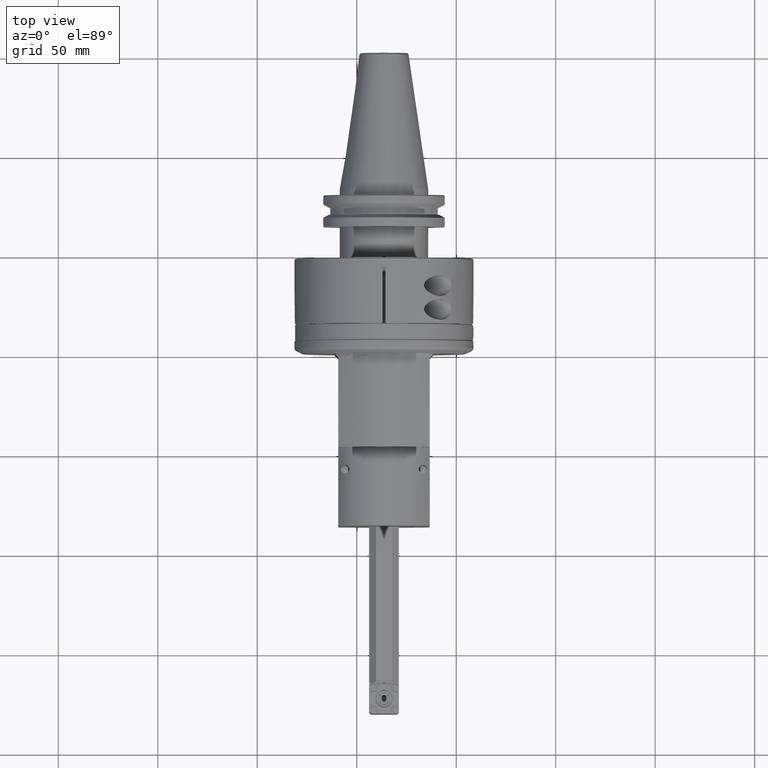
[diagram: clean part render]
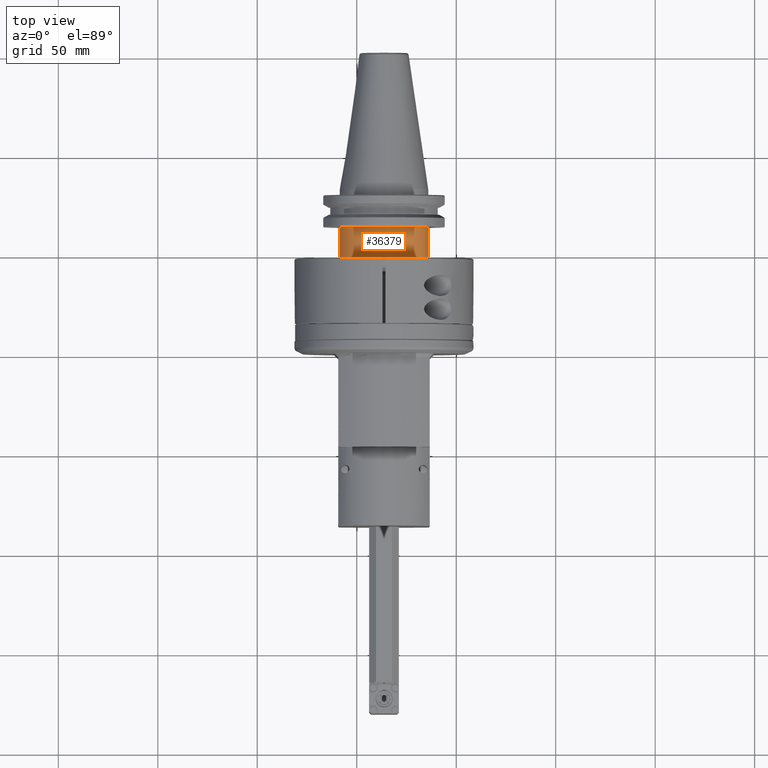
[diagram: same view with one face highlighted and labeled with its STEP entity id]
A machine part, top view. The second image highlights one B-rep face of the part: STEP entity #36379.
In plain terms, the highlighted cylindrical surface (bore or boss wall) has radius 22.225 mm, axis along (0, 1, 0).
Its self-contained STEP definition (entity closure, byte-faithful):
#4397=LINE('',#75931,#7096);
#7096=VECTOR('',#50175,22.225);
#7618=CYLINDRICAL_SURFACE('',#40133,22.225);
#9865=FACE_OUTER_BOUND('',#12144,.T.);
#12144=EDGE_LOOP('',(#33174,#33175,#33176,#33177,#33178));
#13776=CIRCLE('',#40131,22.225);
#13777=CIRCLE('',#40132,22.225);
#13778=CIRCLE('',#40134,22.225);
#17221=VERTEX_POINT('',#75923);
#17222=VERTEX_POINT('',#75924);
#17223=VERTEX_POINT('',#75929);
#22553=EDGE_CURVE('',#17221,#17222,#13776,.T.);
#22555=EDGE_CURVE('',#17222,#17221,#13777,.T.);
#22556=EDGE_CURVE('',#17223,#17223,#13778,.T.);
#22557=EDGE_CURVE('',#17223,#17222,#4397,.T.);
#33174=ORIENTED_EDGE('',*,*,#22556,.T.);
#33175=ORIENTED_EDGE('',*,*,#22557,.T.);
#33176=ORIENTED_EDGE('',*,*,#22555,.T.);
#33177=ORIENTED_EDGE('',*,*,#22553,.T.);
#33178=ORIENTED_EDGE('',*,*,#22557,.F.);
#36379=ADVANCED_FACE('',(#9865),#7618,.T.);
#40131=AXIS2_PLACEMENT_3D('',#75925,#50166,#50167);
#40132=AXIS2_PLACEMENT_3D('',#75927,#50169,#50170);
#40133=AXIS2_PLACEMENT_3D('',#75928,#50171,#50172);
#40134=AXIS2_PLACEMENT_3D('',#75930,#50173,#50174);
#50166=DIRECTION('center_axis',(0.,1.,0.));
#50167=DIRECTION('ref_axis',(1.,0.,0.));
#50169=DIRECTION('center_axis',(0.,1.,0.));
#50170=DIRECTION('ref_axis',(1.,0.,0.));
#50171=DIRECTION('center_axis',(0.,1.,0.));
#50172=DIRECTION('ref_axis',(1.,0.,0.));
#50173=DIRECTION('center_axis',(0.,-1.,0.));
#50174=DIRECTION('ref_axis',(-1.,0.,0.));
#50175=DIRECTION('',(0.,-1.,0.));
#75923=CARTESIAN_POINT('',(9.37728641497035E-14,33.5000210982556,22.225));
#75924=CARTESIAN_POINT('',(-22.225,33.5000210982556,2.72177751110499E-15));
#75925=CARTESIAN_POINT('Origin',(0.,33.5000210982556,0.));
#75927=CARTESIAN_POINT('Origin',(0.,33.5000210982556,0.));
#75928=CARTESIAN_POINT('Origin',(0.,31.25,0.));
#75929=CARTESIAN_POINT('',(-22.225,48.9,2.72177751110499E-15));
#75930=CARTESIAN_POINT('Origin',(0.,48.9,0.));
#75931=CARTESIAN_POINT('',(-22.225,31.25,2.72177751110499E-15));